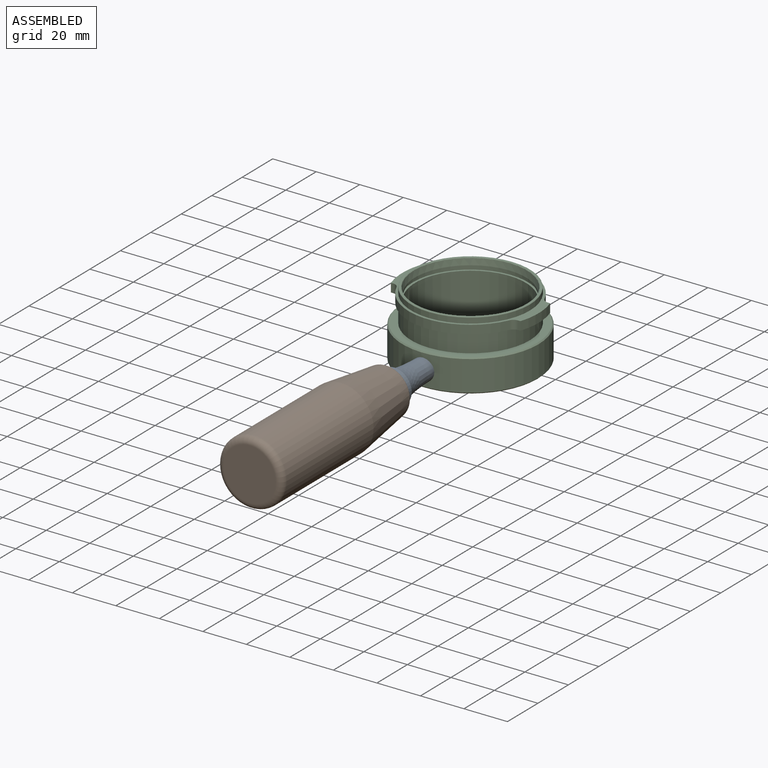
[diagram: assembled view]
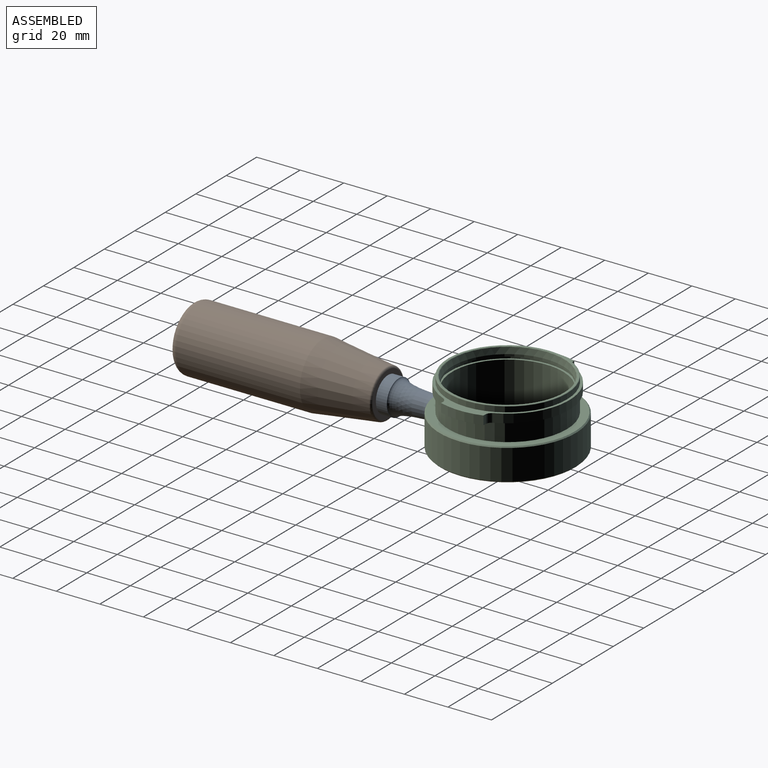
[diagram: assembled view, second angle]
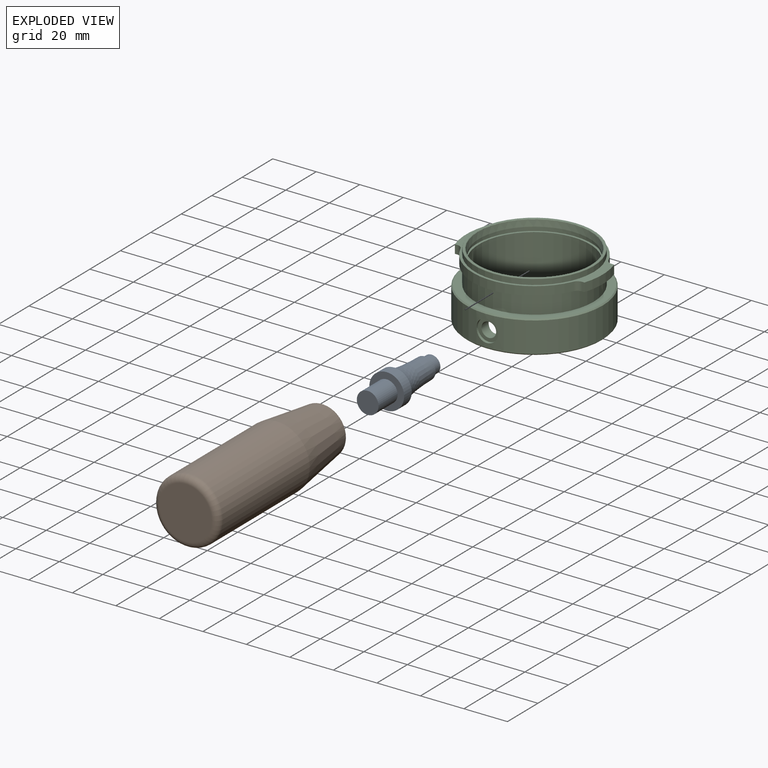
[diagram: exploded view]
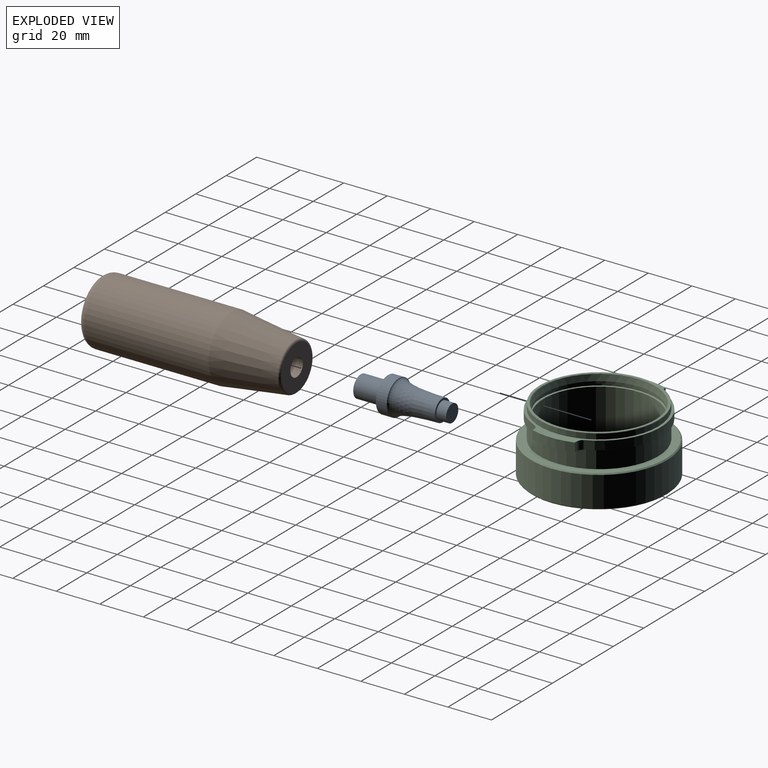
[diagram: exploded view, second angle]
ASSEMBLY  parts=3 mates=2
PART A: 8 faces, bbox 16x42x16 mm
  f0: plane 10x10mm, normal (0,1,0), area 28.3mm2, adj f1,f7
  f1: cylinder r=4mm len=8mm, axis (0,1,0), area 113.1mm2, adj f0,f2
  f2: plane 8x8mm, normal (0,1,0), area 50.3mm2, adj f1
  f3: plane 10x10mm, normal (0,-1,0), area 78.5mm2, adj f4
  f4: cylinder r=5mm len=12.5mm, axis (0,1,0), area 392.7mm2, adj f3,f5
  f5: plane 16x16mm, normal (0,-1,0), area 122.5mm2, adj f4,f6
  f6: cylinder r=8mm len=16mm, axis (0,1,0), area 251.3mm2, adj f5,f7
  f7: revolved ~20x16mm, area 738mm2, adj f0,f6
PART B: 8 faces, bbox 90x32.5x32.5 mm
  f0: plane 8.25x8.25mm, normal (-1,0,0), area 53.5mm2, adj f1
  f1: cylinder r=4.12mm len=15mm, axis (-1,0,0), area 388.8mm2, adj f0,f2
  f2: plane 20.25x20.25mm, normal (-1,0,0), area 268.6mm2, adj f1,f6
  f3: cone r=11mm half-angle=7.6deg, axis (1,0,0), area 2411.3mm2, adj f4,f6
  f4: cylinder r=15mm len=57mm, axis (-1,0,0), area 5372.1mm2, adj f3,f7
  f5: plane 24x24mm, normal (1,0,0), area 452.4mm2, adj f7
  f6: torus R=10.12mm, axis (1,0,0), area 96.9mm2, adj f2,f3
  f7: torus R=12mm, axis (1,0,0), area 411.9mm2, adj f4,f5
PART C: 33 faces, bbox 62.7x62.7x30 mm
  f0: cylinder r=25.5mm len=51mm, axis (0,0,-1), area 3929.5mm2, adj f1,f12,f32
  f1: cylinder r=3.38mm len=6.75mm, axis (0,1,0), area 97.8mm2, adj f0,f24
  f2: cylinder r=25.5mm len=51mm, axis (0,0,-1), area 160.2mm2, adj f27,f30
  f3: cylinder r=31.35mm len=62.7mm, axis (0,0,-1), area 2678.7mm2, adj f23,f25,f26
  f4: cylinder r=28.38mm len=51.85mm, axis (0,0,-1), area 261.6mm2, adj f6,f9,f20,f21
  f5: cylinder r=28.38mm len=51.85mm, axis (0,0,-1), area 261.6mm2, adj f6,f9,f18,f19
  f6: plane 62.7x56.75mm, normal (0,0,1), area 317.6mm2, adj f4,f5,f7,f8,f13,f14,f15,f16
  f7: cylinder r=31.35mm len=19.5mm, axis (0,0,1), area 79.3mm2, adj f6,f9,f14,f16
  f8: cylinder r=31.35mm len=19.5mm, axis (0,0,1), area 79.3mm2, adj f6,f9,f15,f17
  f9: plane 62.7x56.75mm, normal (0,0,-1), area 317.6mm2, adj f4,f5,f7,f8,f14,f15,f16,f17
  f10: plane 54x54mm, normal (0,0,1), area 131.8mm2, adj f28,f29
  f11: plane 61.7x61.7mm, normal (0,0,1), area 657.1mm2, adj f22,f25
  f12: plane 61.7x61.7mm, normal (0,0,-1), area 947.1mm2, adj f0,f26
  f13: cylinder r=27.25mm len=54.5mm, axis (0,0,1), area 410.9mm2, adj f6,f29
  f14: plane 4x1.13mm, normal (0,-1,0), area 4.5mm2, adj f6,f7,f9,f18
  f15: plane 4x1.13mm, normal (0,-1,0), area 4.5mm2, adj f6,f8,f9,f19
  f16: plane 4x1.13mm, normal (0,1,0), area 4.5mm2, adj f6,f7,f9,f21
  f17: plane 4x1.13mm, normal (0,1,0), area 4.5mm2, adj f6,f8,f9,f20
  f18: cylinder r=3mm len=4mm, axis (0,0,-1), area 13.8mm2, adj f5,f6,f9,f14
  f19: cylinder r=3mm len=4mm, axis (0,0,-1), area 13.8mm2, adj f5,f6,f9,f15
  f20: cylinder r=3mm len=4mm, axis (0,0,-1), area 13.8mm2, adj f4,f6,f9,f17
  f21: cylinder r=3mm len=4mm, axis (0,0,-1), area 13.8mm2, adj f4,f6,f9,f16
  f22: cylinder r=27.25mm len=54.5mm, axis (0,0,1), area 1429.7mm2, adj f9,f11
  f23: cylinder r=5mm len=10mm, axis (0,-1,0), area 36.1mm2, adj f3,f24
  f24: plane 10x10mm, normal (0,-1,0), area 42.8mm2, adj f1,f23
  f25: cone r=30.85mm half-angle=45deg, axis (0,0,-1), area 138.2mm2, adj f3,f11
  f26: cone r=31.35mm half-angle=45deg, axis (0,0,1), area 138.2mm2, adj f3,f12
  f27: cone r=25.5mm half-angle=9.5deg, axis (0,0,1), area 457.5mm2, adj f2,f28
  f28: torus R=26.21mm, axis (0,0,1), area 57.5mm2, adj f10,f27
  f29: torus R=27mm, axis (0,0,1), area 67mm2, adj f10,f13
  f30: plane 53x53mm, normal (0,0,-1), area 163.4mm2, adj f2,f31
  f31: cylinder r=26.5mm len=53mm, axis (0,0,-1), area 208.1mm2, adj f30,f32
  f32: plane 53x53mm, normal (0,0,1), area 163.4mm2, adj f0,f31
PLACE A t=(35.95,36.11,17.4)mm
PLACE B rot(axis=(-0.58,0.58,-0.58),120deg) t=(35.95,-21.39,17.4)mm
PLACE C t=(35.95,78.61,9.9)mm
MATE fastened B.f1 <-> A.f1  axis (0,1,0) through (35.95,23.61,17.4)mm
MATE fastened C.f1 <-> A.f1  axis (0,1,0) through (35.95,48.61,17.4)mm
